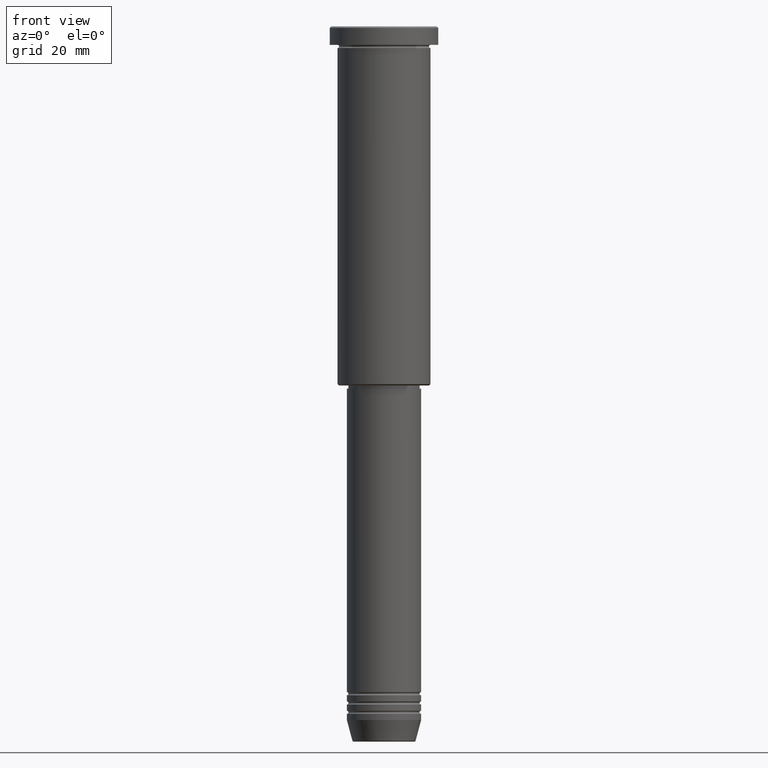
[diagram: clean part render]
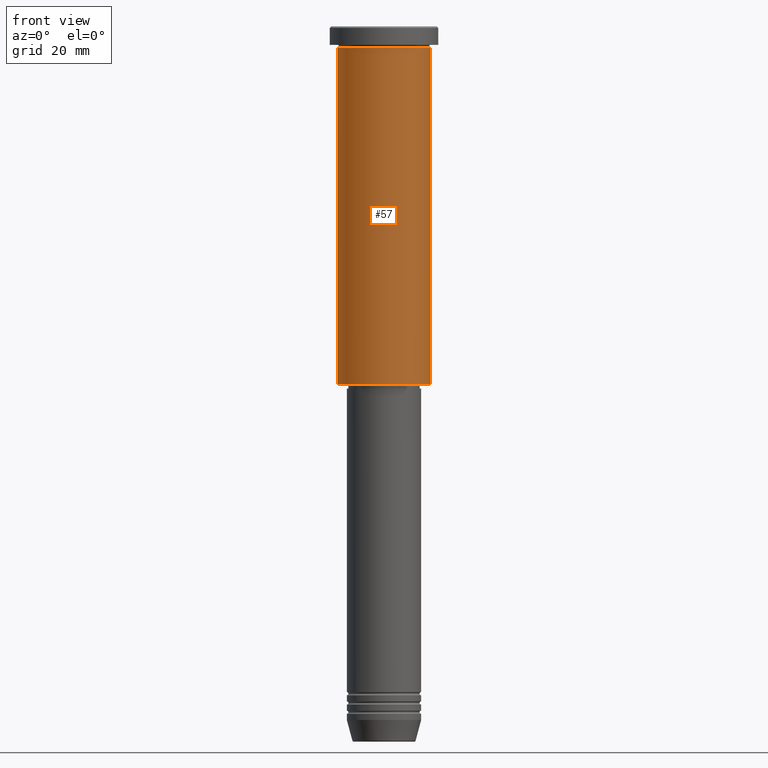
[diagram: same view with one face highlighted and labeled with its STEP entity id]
A machine part, front view. The second image highlights one B-rep face of the part: STEP entity #57.
In plain terms, the highlighted cylindrical surface (partial cylindrical patch) has radius 15 mm, axis along (-0, -0, 1).
Its self-contained STEP definition (entity closure, byte-faithful):
#57 = ADVANCED_FACE ( 'NONE', ( #391 ), #657, .T. ) ;
#65 = AXIS2_PLACEMENT_3D ( 'NONE', #1026, #206, #571 ) ;
#92 = EDGE_LOOP ( 'NONE', ( #805, #597, #894, #186 ) ) ;
#98 = DIRECTION ( 'NONE',  ( -0.000000000000000000, -0.000000000000000000, 1.000000000000000000 ) ) ;
#105 = LINE ( 'NONE', #480, #198 ) ;
#129 = CARTESIAN_POINT ( 'NONE',  ( -15.00000000000000000, 1.836970198721029589E-15, -115.4999999999999432 ) ) ;
#166 = VERTEX_POINT ( 'NONE', #129 ) ;
#186 = ORIENTED_EDGE ( 'NONE', *, *, #337, .F. ) ;
#198 = VECTOR ( 'NONE', #726, 1000.000000000000000 ) ;
#206 = DIRECTION ( 'NONE',  ( -0.000000000000000000, -0.000000000000000000, 1.000000000000000000 ) ) ;
#258 = AXIS2_PLACEMENT_3D ( 'NONE', #1101, #947, #489 ) ;
#283 = LINE ( 'NONE', #645, #1090 ) ;
#337 = EDGE_CURVE ( 'NONE', #414, #663, #545, .T. ) ;
#379 = CARTESIAN_POINT ( 'NONE',  ( 15.00000000000000000, 0.000000000000000000, -6.999999999999995559 ) ) ;
#391 = FACE_OUTER_BOUND ( 'NONE', #92, .T. ) ;
#414 = VERTEX_POINT ( 'NONE', #879 ) ;
#424 = CIRCLE ( 'NONE', #258, 15.00000000000000000 ) ;
#450 = CARTESIAN_POINT ( 'NONE',  ( 0.000000000000000000, 0.000000000000000000, -6.999999999999995559 ) ) ;
#480 = CARTESIAN_POINT ( 'NONE',  ( -15.00000000000000000, 1.836970198721029589E-15, 0.000000000000000000 ) ) ;
#489 = DIRECTION ( 'NONE',  ( -1.000000000000000000, 0.000000000000000000, 0.000000000000000000 ) ) ;
#545 = CIRCLE ( 'NONE', #619, 15.00000000000000000 ) ;
#571 = DIRECTION ( 'NONE',  ( 1.000000000000000000, 0.000000000000000000, 0.000000000000000000 ) ) ;
#574 = EDGE_CURVE ( 'NONE', #1098, #663, #283, .T. ) ;
#593 = CARTESIAN_POINT ( 'NONE',  ( 15.00000000000000000, 0.000000000000000000, -115.4999999999999432 ) ) ;
#597 = ORIENTED_EDGE ( 'NONE', *, *, #992, .T. ) ;
#619 = AXIS2_PLACEMENT_3D ( 'NONE', #450, #799, #1079 ) ;
#645 = CARTESIAN_POINT ( 'NONE',  ( 15.00000000000000000, 0.000000000000000000, 0.000000000000000000 ) ) ;
#657 = CYLINDRICAL_SURFACE ( 'NONE', #65, 15.00000000000000000 ) ;
#663 = VERTEX_POINT ( 'NONE', #379 ) ;
#681 = EDGE_CURVE ( 'NONE', #166, #414, #105, .T. ) ;
#726 = DIRECTION ( 'NONE',  ( -0.000000000000000000, -0.000000000000000000, 1.000000000000000000 ) ) ;
#799 = DIRECTION ( 'NONE',  ( -0.000000000000000000, -0.000000000000000000, 1.000000000000000000 ) ) ;
#805 = ORIENTED_EDGE ( 'NONE', *, *, #681, .F. ) ;
#879 = CARTESIAN_POINT ( 'NONE',  ( -15.00000000000000000, 1.836970198721029589E-15, -6.999999999999995559 ) ) ;
#894 = ORIENTED_EDGE ( 'NONE', *, *, #574, .T. ) ;
#947 = DIRECTION ( 'NONE',  ( -0.000000000000000000, -0.000000000000000000, 1.000000000000000000 ) ) ;
#992 = EDGE_CURVE ( 'NONE', #166, #1098, #424, .T. ) ;
#1026 = CARTESIAN_POINT ( 'NONE',  ( 0.000000000000000000, 0.000000000000000000, 0.000000000000000000 ) ) ;
#1079 = DIRECTION ( 'NONE',  ( 1.000000000000000000, 0.000000000000000000, 0.000000000000000000 ) ) ;
#1090 = VECTOR ( 'NONE', #98, 1000.000000000000000 ) ;
#1098 = VERTEX_POINT ( 'NONE', #593 ) ;
#1101 = CARTESIAN_POINT ( 'NONE',  ( 0.000000000000000000, 0.000000000000000000, -115.4999999999999432 ) ) ;